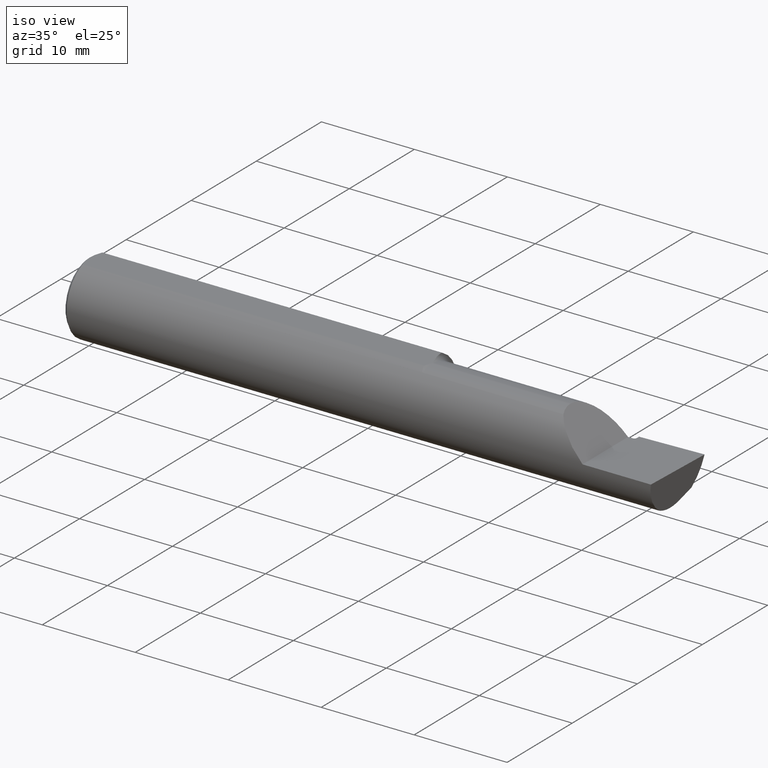
[diagram: clean part render]
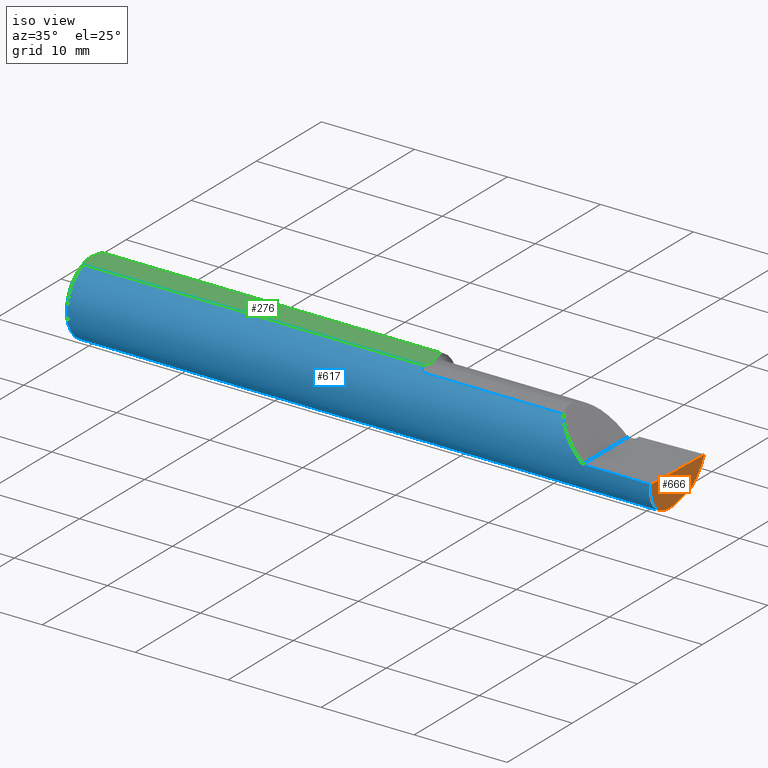
[diagram: same view with three faces highlighted in distinct colors, each labeled with its STEP entity id]
A machine part, iso view with three faces highlighted in distinct colors.
Their STEP definitions:

[orange] entity #666 — the highlighted planar face has unit normal (-0.992, 0.0344, 0.1219).
#6 = CARTESIAN_POINT ( 'NONE',  ( 2.476713598110543035, -0.008170903630063763509, -0.1439000000000001112 ) ) ;
#19 = VECTOR ( 'NONE', #643, 39.37007874015748143 ) ;
#35 = CARTESIAN_POINT ( 'NONE',  ( 2.499553225608604823, 0.1407279727905360600, 3.826894855694925850E-18 ) ) ;
#40 = EDGE_CURVE ( 'NONE', #411, #616, #117, .T. ) ;
#54 = ORIENTED_EDGE ( 'NONE', *, *, #104, .F. ) ;
#60 = CARTESIAN_POINT ( 'NONE',  ( 2.476130359589496788, -0.02499999999999999098, -0.1439000000000001112 ) ) ;
#70 = CARTESIAN_POINT ( 'NONE',  ( 2.489266190342419360, -0.1561000000000000165, 3.826894855694925850E-18 ) ) ;
#104 = EDGE_CURVE ( 'NONE', #652, #581, #305, .T. ) ;
#117 =( BOUNDED_CURVE ( )  B_SPLINE_CURVE ( 3, ( #728, #681, #575, #458 ),
 .UNSPECIFIED., .F., .F. ) 
 B_SPLINE_CURVE_WITH_KNOTS ( ( 4, 4 ),
 ( 4.206370596475371038, 4.793754225472294905 ),
 .UNSPECIFIED. ) 
 CURVE ( )  GEOMETRIC_REPRESENTATION_ITEM ( )  RATIONAL_B_SPLINE_CURVE ( ( 1.000000000000000000, 0.9714544434386382932, 0.9714544434386382932, 1.000000000000000000 ) ) 
 REPRESENTATION_ITEM ( '' )  );
#124 = ORIENTED_EDGE ( 'NONE', *, *, #690, .T. ) ;
#133 = CARTESIAN_POINT ( 'NONE',  ( 2.476130359589496788, -0.02499999999999999098, -0.1439000000000001112 ) ) ;
#154 = PLANE ( 'NONE',  #240 ) ;
#171 = VERTEX_POINT ( 'NONE', #291 ) ;
#193 = DIRECTION ( 'NONE',  ( 0.1219414168599299575, 0.000000000000000000, 0.9925372994775525370 ) ) ;
#214 = DIRECTION ( 'NONE',  ( 0.03463576215158579996, 0.9994000019912840926, 0.000000000000000000 ) ) ;
#217 = CARTESIAN_POINT ( 'NONE',  ( 2.477647009804057276, 0.008402520951239019972, -0.1409776580835795656 ) ) ;
#221 = ORIENTED_EDGE ( 'NONE', *, *, #364, .T. ) ;
#240 = AXIS2_PLACEMENT_3D ( 'NONE', #710, #377, #193 ) ;
#245 = EDGE_CURVE ( 'NONE', #581, #616, #662, .T. ) ;
#277 = CARTESIAN_POINT ( 'NONE',  ( 2.475247014433751946, -0.06661082633900398953, -0.1393521354400291679 ) ) ;
#291 = CARTESIAN_POINT ( 'NONE',  ( 2.478902233428061930, 0.02421669862456291358, -0.1352217681310924902 ) ) ;
#305 =( BOUNDED_CURVE ( )  B_SPLINE_CURVE ( 3, ( #577, #693, #536, #70 ),
 .UNSPECIFIED., .F., .T. ) 
 B_SPLINE_CURVE_WITH_KNOTS ( ( 4, 4 ),
 ( 0.3062340898531116795, 1.295854645076560674 ),
 .UNSPECIFIED. ) 
 CURVE ( )  GEOMETRIC_REPRESENTATION_ITEM ( )  RATIONAL_B_SPLINE_CURVE ( ( 1.000000000000000000, 0.9200392120919966832, 0.9200392120919966832, 1.000000000000000000 ) ) 
 REPRESENTATION_ITEM ( '' )  );
#337 = CARTESIAN_POINT ( 'NONE',  ( 2.476130359589496788, -0.02499999999999999098, -0.1439000000000001112 ) ) ;
#364 = EDGE_CURVE ( 'NONE', #502, #171, #396, .T. ) ;
#367 = CARTESIAN_POINT ( 'NONE',  ( 2.500000000000000000, 0.1536194554637218546, 2.048885995248197414E-16 ) ) ;
#377 = DIRECTION ( 'NONE',  ( -0.9919506264397697226, 0.03437759245049914342, 0.1218693392246628371 ) ) ;
#379 = EDGE_CURVE ( 'NONE', #652, #502, #473, .T. ) ;
#383 = ORIENTED_EDGE ( 'NONE', *, *, #245, .F. ) ;
#396 =( BOUNDED_CURVE ( )  B_SPLINE_CURVE ( 3, ( #337, #6, #217, #665 ),
 .UNSPECIFIED., .F., .T. ) 
 B_SPLINE_CURVE_WITH_KNOTS ( ( 4, 4 ),
 ( 0.2749416817183363282, 0.6240075321171963951 ),
 .UNSPECIFIED. ) 
 CURVE ( )  GEOMETRIC_REPRESENTATION_ITEM ( )  RATIONAL_B_SPLINE_CURVE ( ( 1.000000000000000000, 0.9898718353414723836, 0.9898718353414723836, 1.000000000000000000 ) ) 
 REPRESENTATION_ITEM ( '' )  );
#406 = CARTESIAN_POINT ( 'NONE',  ( 2.489266190342419360, -0.1561000000000000165, 3.826894855694925850E-18 ) ) ;
#411 = VERTEX_POINT ( 'NONE', #565 ) ;
#458 = CARTESIAN_POINT ( 'NONE',  ( 2.500000000000000000, 0.1536194554637218546, 2.048885995248197414E-16 ) ) ;
#473 =( BOUNDED_CURVE ( )  B_SPLINE_CURVE ( 3, ( #676, #277, #724, #60 ),
 .UNSPECIFIED., .F., .T. ) 
 B_SPLINE_CURVE_WITH_KNOTS ( ( 4, 4 ),
 ( 6.122674497807369498, 6.558126988897922338 ),
 .UNSPECIFIED. ) 
 CURVE ( )  GEOMETRIC_REPRESENTATION_ITEM ( )  RATIONAL_B_SPLINE_CURVE ( ( 1.000000000000000000, 0.9842607512044747597, 0.9842607512044747597, 1.000000000000000000 ) ) 
 REPRESENTATION_ITEM ( '' )  );
#475 = ORIENTED_EDGE ( 'NONE', *, *, #40, .T. ) ;
#476 = CARTESIAN_POINT ( 'NONE',  ( 2.475676552398977215, -0.08569999999999922125, -0.1304711462354804230 ) ) ;
#479 = FACE_OUTER_BOUND ( 'NONE', #602, .T. ) ;
#502 = VERTEX_POINT ( 'NONE', #133 ) ;
#536 = CARTESIAN_POINT ( 'NONE',  ( 2.482667168175673122, -0.1560999999999999888, -0.05371247775559876564 ) ) ;
#565 = CARTESIAN_POINT ( 'NONE',  ( 2.484581445595343219, 0.09576735185317623855, -0.1091794601135747944 ) ) ;
#575 = CARTESIAN_POINT ( 'NONE',  ( 2.494605827839288192, 0.1454635380981003923, -0.04160498188424494731 ) ) ;
#577 = CARTESIAN_POINT ( 'NONE',  ( 2.475676552398977215, -0.08569999999999922125, -0.1304711462354804230 ) ) ;
#581 = VERTEX_POINT ( 'NONE', #406 ) ;
#602 = EDGE_LOOP ( 'NONE', ( #655, #221, #124, #475, #383, #54 ) ) ;
#606 = LINE ( 'NONE', #702, #19 ) ;
#616 = VERTEX_POINT ( 'NONE', #367 ) ;
#643 = DIRECTION ( 'NONE',  ( 0.07437990725530781166, 0.9370896517296887218, 0.3410727400684822053 ) ) ;
#652 = VERTEX_POINT ( 'NONE', #476 ) ;
#655 = ORIENTED_EDGE ( 'NONE', *, *, #379, .T. ) ;
#662 = LINE ( 'NONE', #35, #673 ) ;
#665 = CARTESIAN_POINT ( 'NONE',  ( 2.478902233428061930, 0.02421669862456291358, -0.1352217681310924902 ) ) ;
#666 = ADVANCED_FACE ( 'NONE', ( #479 ), #154, .F. ) ;
#673 = VECTOR ( 'NONE', #214, 39.37007874015748143 ) ;
#676 = CARTESIAN_POINT ( 'NONE',  ( 2.475676552398977215, -0.08569999999999922125, -0.1304711462354804230 ) ) ;
#681 = CARTESIAN_POINT ( 'NONE',  ( 2.489315288308734608, 0.1256128547571745691, -0.07906752438118763715 ) ) ;
#690 = EDGE_CURVE ( 'NONE', #171, #411, #606, .T. ) ;
#693 = CARTESIAN_POINT ( 'NONE',  ( 2.477743596163800799, -0.1305938407426047165, -0.1009826174484543676 ) ) ;
#702 = CARTESIAN_POINT ( 'NONE',  ( 2.479018954091639859, 0.02568722648642991421, -0.1346865397607137915 ) ) ;
#710 = CARTESIAN_POINT ( 'NONE',  ( 2.444043095161126278, 0.1555735136390714868, -0.4560102071422535985 ) ) ;
#724 = CARTESIAN_POINT ( 'NONE',  ( 2.475400702430881950, -0.04605394310600616214, -0.1439000000000001112 ) ) ;
#728 = CARTESIAN_POINT ( 'NONE',  ( 2.484581445595343219, 0.09576735185317623855, -0.1091794601135747944 ) ) ;

[blue] entity #617 — the highlighted cylindrical surface (partial cylindrical patch) has radius 3.9649 mm, axis along (-1, -0, -0).
#11 = LINE ( 'NONE', #235, #178 ) ;
#15 = EDGE_CURVE ( 'NONE', #652, #605, #627, .T. ) ;
#17 = CARTESIAN_POINT ( 'NONE',  ( 1.473558490372085750, -0.08570000000287464337, 0.1304711462335919059 ) ) ;
#22 = VECTOR ( 'NONE', #540, 39.37007874015748143 ) ;
#24 = CARTESIAN_POINT ( 'NONE',  ( 1.470308733175471394, -0.08325729668116114979, 0.1320471792325036697 ) ) ;
#28 = VERTEX_POINT ( 'NONE', #180 ) ;
#30 = B_SPLINE_CURVE_WITH_KNOTS ( 'NONE', 3,
 ( #318, #89, #37, #429, #85, #304, #542, #421, #256, #260 ),
 .UNSPECIFIED., .F., .F.,
 ( 4, 2, 2, 2, 4 ),
 ( 0.001819519887002705571, 0.002458246943215913662, 0.003096973999429121754, 0.003735701055642329411, 0.004374428111855537503 ),
 .UNSPECIFIED. ) ;
#34 = DIRECTION ( 'NONE',  ( 1.000000000000000000, 0.000000000000000000, 0.000000000000000000 ) ) ;
#37 = CARTESIAN_POINT ( 'NONE',  ( 1.453136333117606371, -0.008834603825782310488, -0.1560646118524871007 ) ) ;
#39 = ORIENTED_EDGE ( 'NONE', *, *, #222, .T. ) ;
#41 = CARTESIAN_POINT ( 'NONE',  ( 1.450050504025077291, 0.06001999666777734638, 0.1440999999999999504 ) ) ;
#59 = CARTESIAN_POINT ( 'NONE',  ( 0.01499999999999972536, -0.06001999666777736026, 0.1440999999999999504 ) ) ;
#65 = CARTESIAN_POINT ( 'NONE',  ( 1.474999999999999867, -0.08569999999999942941, 0.1304711462354803120 ) ) ;
#70 = CARTESIAN_POINT ( 'NONE',  ( 2.489266190342419360, -0.1561000000000000165, 3.826894855694925850E-18 ) ) ;
#80 = VECTOR ( 'NONE', #168, 39.37007874015748143 ) ;
#85 = CARTESIAN_POINT ( 'NONE',  ( 1.451388441185261113, 0.01585133794323623918, -0.1555099485709025287 ) ) ;
#87 = VERTEX_POINT ( 'NONE', #474 ) ;
#89 = CARTESIAN_POINT ( 'NONE',  ( 1.453902027940762842, -0.01695323297373864391, -0.1553906460178914595 ) ) ;
#101 = CYLINDRICAL_SURFACE ( 'NONE', #592, 0.1560999999999999888 ) ;
#104 = EDGE_CURVE ( 'NONE', #652, #581, #305, .T. ) ;
#115 = CIRCLE ( 'NONE', #670, 0.1560999999999999888 ) ;
#128 = CARTESIAN_POINT ( 'NONE',  ( 1.454862523376303063, -0.02499999999999999445, -0.1540850739039962836 ) ) ;
#131 = B_SPLINE_CURVE_WITH_KNOTS ( 'NONE', 3,
 ( #504, #727, #220, #445, #224, #626, #24, #241, #17, #65 ),
 .UNSPECIFIED., .F., .F.,
 ( 4, 2, 2, 2, 4 ),
 ( 5.292347910093808338E-07, 0.0004247077115782286029, 0.0006367969499718418788, 0.0007428415691686483541, 0.0008488861883654550463 ),
 .UNSPECIFIED. ) ;
#140 = VECTOR ( 'NONE', #633, 39.37007874015748143 ) ;
#143 = LINE ( 'NONE', #551, #22 ) ;
#145 = CARTESIAN_POINT ( 'NONE',  ( 1.450000000000000178, 0.000000000000000000, 0.000000000000000000 ) ) ;
#149 = DIRECTION ( 'NONE',  ( 1.000000000000000000, 0.000000000000000000, 0.000000000000000000 ) ) ;
#151 = CARTESIAN_POINT ( 'NONE',  ( 2.146287522244399781, -0.1560999999999999888, 0.05371247775560062526 ) ) ;
#158 = CARTESIAN_POINT ( 'NONE',  ( 0.01499999999999970281, 0.06001999666777736719, 0.1440999999999999504 ) ) ;
#164 = VECTOR ( 'NONE', #149, 39.37007874015748143 ) ;
#165 = B_SPLINE_CURVE_WITH_KNOTS ( 'NONE', 3,
 ( #546, #713, #706, #41 ),
 .UNSPECIFIED., .F., .F.,
 ( 4, 4 ),
 ( 0.002773882331925834558, 0.003069179409190569887 ),
 .UNSPECIFIED. ) ;
#168 = DIRECTION ( 'NONE',  ( -1.000000000000000000, -0.000000000000000000, -0.000000000000000000 ) ) ;
#170 = CARTESIAN_POINT ( 'NONE',  ( 2.069528853764517784, -0.08569999999999491913, 0.1304711462354829210 ) ) ;
#178 = VECTOR ( 'NONE', #464, 39.37007874015748143 ) ;
#180 = CARTESIAN_POINT ( 'NONE',  ( 0.01499999999999970281, 0.000000000000000000, -0.1560999999999999888 ) ) ;
#194 = EDGE_CURVE ( 'NONE', #684, #608, #477, .T. ) ;
#205 = EDGE_CURVE ( 'NONE', #605, #572, #344, .T. ) ;
#206 = DIRECTION ( 'NONE',  ( 0.000000000000000000, 0.000000000000000000, 1.000000000000000000 ) ) ;
#207 = CARTESIAN_POINT ( 'NONE',  ( 1.450000000000000178, 0.07070000000000016549, 0.1391715488165593539 ) ) ;
#220 = CARTESIAN_POINT ( 'NONE',  ( 1.463486186723763183, -0.06993940022577684046, 0.1396536156489262270 ) ) ;
#222 = EDGE_CURVE ( 'NONE', #423, #395, #316, .T. ) ;
#224 = CARTESIAN_POINT ( 'NONE',  ( 1.467376702052392012, -0.07908290169519981150, 0.1346075232099596952 ) ) ;
#226 = EDGE_CURVE ( 'NONE', #537, #725, #143, .T. ) ;
#233 = VERTEX_POINT ( 'NONE', #207 ) ;
#235 = CARTESIAN_POINT ( 'NONE',  ( 2.056000000000000050, -0.1560999999999999888, 3.826894855694925850E-18 ) ) ;
#241 = CARTESIAN_POINT ( 'NONE',  ( 1.472282960142827557, -0.08496306084893956445, 0.1309561502377618036 ) ) ;
#244 = AXIS2_PLACEMENT_3D ( 'NONE', #145, #34, #554 ) ;
#256 = CARTESIAN_POINT ( 'NONE',  ( 1.450000000000000400, 0.06336441380915118493, -0.1428980715728493389 ) ) ;
#257 = CARTESIAN_POINT ( 'NONE',  ( 1.474999999999999867, -0.08569999999999930451, -0.1304711462354803397 ) ) ;
#260 = CARTESIAN_POINT ( 'NONE',  ( 1.450000000000000178, 0.07070000000000016549, -0.1391715488165593539 ) ) ;
#262 = VERTEX_POINT ( 'NONE', #319 ) ;
#265 = ORIENTED_EDGE ( 'NONE', *, *, #226, .T. ) ;
#267 = CIRCLE ( 'NONE', #244, 0.1560999999999999888 ) ;
#268 = CARTESIAN_POINT ( 'NONE',  ( 1.470128093538963343, -0.08306175160949928749, -0.1321708551218366279 ) ) ;
#271 = EDGE_CURVE ( 'NONE', #725, #28, #387, .T. ) ;
#301 = CARTESIAN_POINT ( 'NONE',  ( 1.474999999999999867, -0.08569999999999930451, -0.1304711462354803397 ) ) ;
#304 = CARTESIAN_POINT ( 'NONE',  ( 1.450649978979527077, 0.03207608857981674583, -0.1529893249888212570 ) ) ;
#305 =( BOUNDED_CURVE ( )  B_SPLINE_CURVE ( 3, ( #577, #693, #536, #70 ),
 .UNSPECIFIED., .F., .T. ) 
 B_SPLINE_CURVE_WITH_KNOTS ( ( 4, 4 ),
 ( 0.3062340898531116795, 1.295854645076560674 ),
 .UNSPECIFIED. ) 
 CURVE ( )  GEOMETRIC_REPRESENTATION_ITEM ( )  RATIONAL_B_SPLINE_CURVE ( ( 1.000000000000000000, 0.9200392120919966832, 0.9200392120919966832, 1.000000000000000000 ) ) 
 REPRESENTATION_ITEM ( '' )  );
#306 = CARTESIAN_POINT ( 'NONE',  ( 1.472162220462617244, -0.08489276752862366660, -0.1310023188550751005 ) ) ;
#310 = DIRECTION ( 'NONE',  ( -1.000000000000000000, -0.000000000000000000, -0.000000000000000000 ) ) ;
#311 = CARTESIAN_POINT ( 'NONE',  ( 1.467151728812736033, -0.07866717671367091935, -0.1348531152278719392 ) ) ;
#314 = CARTESIAN_POINT ( 'NONE',  ( 1.450050504025077291, 0.06001999666777734638, 0.1440999999999999504 ) ) ;
#316 =( BOUNDED_CURVE ( )  B_SPLINE_CURVE ( 3, ( #711, #151, #544, #498 ),
 .UNSPECIFIED., .F., .T. ) 
 B_SPLINE_CURVE_WITH_KNOTS ( ( 4, 4 ),
 ( 4.712388980384689674, 5.702009535608170587 ),
 .UNSPECIFIED. ) 
 CURVE ( )  GEOMETRIC_REPRESENTATION_ITEM ( )  RATIONAL_B_SPLINE_CURVE ( ( 1.000000000000000000, 0.9200392120919916872, 0.9200392120919916872, 1.000000000000000000 ) ) 
 REPRESENTATION_ITEM ( '' )  );
#318 = CARTESIAN_POINT ( 'NONE',  ( 1.454862523376303063, -0.02499999999999999445, -0.1540850739039962836 ) ) ;
#319 = CARTESIAN_POINT ( 'NONE',  ( 1.450000000000000178, 0.07070000000000016549, -0.1391715488165593539 ) ) ;
#330 = ORIENTED_EDGE ( 'NONE', *, *, #104, .T. ) ;
#339 = ORIENTED_EDGE ( 'NONE', *, *, #678, .F. ) ;
#344 = B_SPLINE_CURVE_WITH_KNOTS ( 'NONE', 3,
 ( #257, #427, #306, #268, #372, #311, #422, #598, #485, #607, #718, #654 ),
 .UNSPECIFIED., .F., .F.,
 ( 4, 2, 2, 2, 2, 4 ),
 ( 1.966861314630388892E-07, 0.0001139043861859138809, 0.0002276120862403647051, 0.0004550274863492680339, 0.0009098582865670818472, 0.001819519887002705571 ),
 .UNSPECIFIED. ) ;
#372 = CARTESIAN_POINT ( 'NONE',  ( 1.469310887745669092, -0.08198244806375819260, -0.1328448627315470809 ) ) ;
#378 = DIRECTION ( 'NONE',  ( 1.000000000000000000, -0.000000000000000000, -0.000000000000000000 ) ) ;
#386 = ORIENTED_EDGE ( 'NONE', *, *, #205, .F. ) ;
#387 = CIRCLE ( 'NONE', #558, 0.1560999999999999888 ) ;
#395 = VERTEX_POINT ( 'NONE', #170 ) ;
#406 = CARTESIAN_POINT ( 'NONE',  ( 2.489266190342419360, -0.1561000000000000165, 3.826894855694925850E-18 ) ) ;
#407 = CARTESIAN_POINT ( 'NONE',  ( 2.500000000000000000, 0.06001999666777736719, 0.1440999999999999504 ) ) ;
#421 = CARTESIAN_POINT ( 'NONE',  ( 1.450071990262527422, 0.05564801034740572694, -0.1460745134073546669 ) ) ;
#422 = CARTESIAN_POINT ( 'NONE',  ( 1.466062054560795858, -0.07627963852229831254, -0.1362221433799975789 ) ) ;
#423 = VERTEX_POINT ( 'NONE', #680 ) ;
#427 = CARTESIAN_POINT ( 'NONE',  ( 1.473482932671287271, -0.08569999999999937390, -0.1304711462354803397 ) ) ;
#429 = CARTESIAN_POINT ( 'NONE',  ( 1.451879363605551587, 0.007536363012658814885, -0.1561326888578026539 ) ) ;
#435 = LINE ( 'NONE', #661, #164 ) ;
#443 = ORIENTED_EDGE ( 'NONE', *, *, #621, .F. ) ;
#445 = CARTESIAN_POINT ( 'NONE',  ( 1.466324726609743445, -0.07684337455390506666, 0.1359013108991525554 ) ) ;
#450 = CARTESIAN_POINT ( 'NONE',  ( 0.01499999999999970281, 0.000000000000000000, 0.000000000000000000 ) ) ;
#455 = EDGE_CURVE ( 'NONE', #537, #87, #131, .T. ) ;
#464 = DIRECTION ( 'NONE',  ( 1.000000000000000000, -0.000000000000000000, -0.000000000000000000 ) ) ;
#474 = CARTESIAN_POINT ( 'NONE',  ( 1.474999999999999867, -0.08569999999999942941, 0.1304711462354803120 ) ) ;
#476 = CARTESIAN_POINT ( 'NONE',  ( 2.475676552398977215, -0.08569999999999922125, -0.1304711462354804230 ) ) ;
#477 = LINE ( 'NONE', #407, #140 ) ;
#485 = CARTESIAN_POINT ( 'NONE',  ( 1.461707069840786799, -0.06372296352516912399, -0.1426158673175149105 ) ) ;
#486 = ORIENTED_EDGE ( 'NONE', *, *, #589, .F. ) ;
#489 = ORIENTED_EDGE ( 'NONE', *, *, #15, .F. ) ;
#498 = CARTESIAN_POINT ( 'NONE',  ( 2.069528853764517784, -0.08569999999999491913, 0.1304711462354829210 ) ) ;
#504 = CARTESIAN_POINT ( 'NONE',  ( 1.460843495424060334, -0.06001999666777307896, 0.1440999999999999504 ) ) ;
#519 = CARTESIAN_POINT ( 'NONE',  ( 1.460843495424060334, -0.06001999666777307896, 0.1440999999999999504 ) ) ;
#536 = CARTESIAN_POINT ( 'NONE',  ( 2.482667168175673122, -0.1560999999999999888, -0.05371247775559876564 ) ) ;
#537 = VERTEX_POINT ( 'NONE', #519 ) ;
#539 = FACE_OUTER_BOUND ( 'NONE', #552, .T. ) ;
#540 = DIRECTION ( 'NONE',  ( -1.000000000000000000, -0.000000000000000000, -0.000000000000000000 ) ) ;
#542 = CARTESIAN_POINT ( 'NONE',  ( 1.450397517577731943, 0.04003554869482257861, -0.1511013546051950540 ) ) ;
#544 = CARTESIAN_POINT ( 'NONE',  ( 2.099017382551542799, -0.1305938407426030790, 0.1009826174484575040 ) ) ;
#546 = CARTESIAN_POINT ( 'NONE',  ( 1.450000000000000178, 0.07070000000000016549, 0.1391715488165593539 ) ) ;
#551 = CARTESIAN_POINT ( 'NONE',  ( 2.500000000000000000, -0.06001999666777736719, 0.1440999999999999504 ) ) ;
#552 = EDGE_LOOP ( 'NONE', ( #489, #330, #486, #39, #339, #715, #265, #624, #599, #611, #443, #588, #691, #386 ) ) ;
#554 = DIRECTION ( 'NONE',  ( 0.000000000000000000, 0.000000000000000000, -1.000000000000000000 ) ) ;
#558 = AXIS2_PLACEMENT_3D ( 'NONE', #601, #378, #651 ) ;
#559 = DIRECTION ( 'NONE',  ( 1.000000000000000000, -0.000000000000000000, -0.000000000000000000 ) ) ;
#563 = CARTESIAN_POINT ( 'NONE',  ( 1.847499999999999920, -0.08569999999999922125, -0.1304711462354804230 ) ) ;
#572 = VERTEX_POINT ( 'NONE', #128 ) ;
#577 = CARTESIAN_POINT ( 'NONE',  ( 2.475676552398977215, -0.08569999999999922125, -0.1304711462354804230 ) ) ;
#581 = VERTEX_POINT ( 'NONE', #406 ) ;
#588 = ORIENTED_EDGE ( 'NONE', *, *, #613, .F. ) ;
#589 = EDGE_CURVE ( 'NONE', #423, #581, #11, .T. ) ;
#592 = AXIS2_PLACEMENT_3D ( 'NONE', #596, #310, #206 ) ;
#596 = CARTESIAN_POINT ( 'NONE',  ( 2.500000000000000000, 0.000000000000000000, 0.000000000000000000 ) ) ;
#598 = CARTESIAN_POINT ( 'NONE',  ( 1.463126895908767100, -0.06887538526310800491, -0.1401954838979877493 ) ) ;
#599 = ORIENTED_EDGE ( 'NONE', *, *, #720, .T. ) ;
#601 = CARTESIAN_POINT ( 'NONE',  ( 0.01499999999999970281, 0.000000000000000000, 0.000000000000000000 ) ) ;
#605 = VERTEX_POINT ( 'NONE', #301 ) ;
#607 = CARTESIAN_POINT ( 'NONE',  ( 1.457963511987595773, -0.04781653154421297569, -0.1490354188631308474 ) ) ;
#608 = VERTEX_POINT ( 'NONE', #314 ) ;
#611 = ORIENTED_EDGE ( 'NONE', *, *, #194, .T. ) ;
#613 = EDGE_CURVE ( 'NONE', #262, #233, #267, .T. ) ;
#617 = ADVANCED_FACE ( 'NONE', ( #539 ), #101, .T. ) ;
#621 = EDGE_CURVE ( 'NONE', #233, #608, #165, .T. ) ;
#624 = ORIENTED_EDGE ( 'NONE', *, *, #271, .T. ) ;
#626 = CARTESIAN_POINT ( 'NONE',  ( 1.469508261956889550, -0.08224208440130487130, 0.1326837206089796495 ) ) ;
#627 = LINE ( 'NONE', #563, #80 ) ;
#633 = DIRECTION ( 'NONE',  ( 1.000000000000000000, 0.000000000000000000, 0.000000000000000000 ) ) ;
#636 = EDGE_CURVE ( 'NONE', #572, #262, #30, .T. ) ;
#651 = DIRECTION ( 'NONE',  ( 0.000000000000000000, 0.000000000000000000, -1.000000000000000000 ) ) ;
#652 = VERTEX_POINT ( 'NONE', #476 ) ;
#654 = CARTESIAN_POINT ( 'NONE',  ( 1.454862523376303063, -0.02499999999999999445, -0.1540850739039962836 ) ) ;
#661 = CARTESIAN_POINT ( 'NONE',  ( 1.847499999999999920, -0.08569999999999922125, 0.1304711462354804230 ) ) ;
#670 = AXIS2_PLACEMENT_3D ( 'NONE', #450, #559, #679 ) ;
#678 = EDGE_CURVE ( 'NONE', #87, #395, #435, .T. ) ;
#679 = DIRECTION ( 'NONE',  ( 0.000000000000000000, 0.000000000000000000, -1.000000000000000000 ) ) ;
#680 = CARTESIAN_POINT ( 'NONE',  ( 2.199999999999999289, -0.1560999999999999888, 3.826894855694925850E-18 ) ) ;
#684 = VERTEX_POINT ( 'NONE', #158 ) ;
#691 = ORIENTED_EDGE ( 'NONE', *, *, #636, .F. ) ;
#693 = CARTESIAN_POINT ( 'NONE',  ( 2.477743596163800799, -0.1305938407426047165, -0.1009826174484543676 ) ) ;
#706 = CARTESIAN_POINT ( 'NONE',  ( 1.450016018626790970, 0.06364538733738611676, 0.1425899657466627724 ) ) ;
#711 = CARTESIAN_POINT ( 'NONE',  ( 2.199999999999999289, -0.1560999999999999888, 3.826894855694925850E-18 ) ) ;
#713 = CARTESIAN_POINT ( 'NONE',  ( 1.450000000000000178, 0.06720526509779117807, 0.1409468955716051408 ) ) ;
#715 = ORIENTED_EDGE ( 'NONE', *, *, #455, .F. ) ;
#718 = CARTESIAN_POINT ( 'NONE',  ( 1.456230440715338137, -0.03646003586389188339, -0.1522257056385417917 ) ) ;
#720 = EDGE_CURVE ( 'NONE', #28, #684, #115, .T. ) ;
#725 = VERTEX_POINT ( 'NONE', #59 ) ;
#727 = CARTESIAN_POINT ( 'NONE',  ( 1.462083001804620253, -0.06507129184707169389, 0.1419960532975073353 ) ) ;

[green] entity #276 — the highlighted planar face has unit normal (-0, 0, -1).
#12 = CARTESIAN_POINT ( 'NONE',  ( 0.004122478534597582081, 0.02050740516666000463, 0.1440999999999999504 ) ) ;
#22 = VECTOR ( 'NONE', #540, 39.37007874015748143 ) ;
#25 = CARTESIAN_POINT ( 'NONE',  ( 1.469201185154610068, -0.03693468910894925211, 0.1440999999999999504 ) ) ;
#26 = CARTESIAN_POINT ( 'NONE',  ( 0.002999999999999654852, 1.764715027525136477E-17, 0.1440999999999999504 ) ) ;
#32 = ORIENTED_EDGE ( 'NONE', *, *, #64, .F. ) ;
#46 = CARTESIAN_POINT ( 'NONE',  ( 0.000000000000000000, 0.06250000000000000000, 0.1440999999999999504 ) ) ;
#53 = CARTESIAN_POINT ( 'NONE',  ( 1.471844053232376659, -0.02500000000003148315, 0.1440999999999999504 ) ) ;
#59 = CARTESIAN_POINT ( 'NONE',  ( 0.01499999999999972536, -0.06001999666777736026, 0.1440999999999999504 ) ) ;
#64 = EDGE_CURVE ( 'NONE', #452, #537, #622, .T. ) ;
#67 = CARTESIAN_POINT ( 'NONE',  ( 0.002999999999999654852, 1.764715027525136477E-17, 0.1440999999999999504 ) ) ;
#68 = CARTESIAN_POINT ( 'NONE',  ( 0.01499999999999972536, -0.06001999666777736026, 0.1440999999999999504 ) ) ;
#72 = CARTESIAN_POINT ( 'NONE',  ( 0.002999999999999647914, -0.01031315224690933403, 0.1440999999999999781 ) ) ;
#74 = CARTESIAN_POINT ( 'NONE',  ( 0.002999999999999654852, 1.764715027525136477E-17, 0.1440999999999999504 ) ) ;
#83 = CARTESIAN_POINT ( 'NONE',  ( 0.01131807689752593361, 0.05044405151276061539, 0.1440999999999999781 ) ) ;
#99 = EDGE_CURVE ( 'NONE', #684, #135, #555, .T. ) ;
#123 = B_SPLINE_CURVE_WITH_KNOTS ( 'NONE', 3,
 ( #26, #72, #692, #638, #456, #68 ),
 .UNSPECIFIED., .F., .F.,
 ( 4, 2, 4 ),
 ( 0.004180243930011207955, 0.004951811791491188969, 0.005723379652971170850 ),
 .UNSPECIFIED. ) ;
#135 = VERTEX_POINT ( 'NONE', #67 ) ;
#136 = CARTESIAN_POINT ( 'NONE',  ( 1.471844053232376659, -0.02500000000003148315, 0.1440999999999999504 ) ) ;
#140 = VECTOR ( 'NONE', #633, 39.37007874015748143 ) ;
#143 = LINE ( 'NONE', #551, #22 ) ;
#158 = CARTESIAN_POINT ( 'NONE',  ( 0.01499999999999970281, 0.06001999666777736719, 0.1440999999999999504 ) ) ;
#192 = EDGE_LOOP ( 'NONE', ( #374, #243, #545, #461, #415, #32 ) ) ;
#194 = EDGE_CURVE ( 'NONE', #684, #608, #477, .T. ) ;
#226 = EDGE_CURVE ( 'NONE', #537, #725, #143, .T. ) ;
#243 = ORIENTED_EDGE ( 'NONE', *, *, #194, .F. ) ;
#259 = B_SPLINE_CURVE_WITH_KNOTS ( 'NONE', 3,
 ( #403, #579, #459, #635, #298, #469, #632, #400, #628, #136 ),
 .UNSPECIFIED., .F., .F.,
 ( 4, 2, 2, 2, 4 ),
 ( 0.01301670781631528509, 0.01412932456335375814, 0.01468563293687299640, 0.01496378712363261726, 0.01524194131039223639 ),
 .UNSPECIFIED. ) ;
#266 = AXIS2_PLACEMENT_3D ( 'NONE', #46, #547, #439 ) ;
#276 = ADVANCED_FACE ( 'NONE', ( #714 ), #556, .F. ) ;
#295 = CARTESIAN_POINT ( 'NONE',  ( 0.01499999999999970281, 0.06001999666777736719, 0.1440999999999999504 ) ) ;
#298 = CARTESIAN_POINT ( 'NONE',  ( 1.463353959584570596, 0.002866311517161839687, 0.1440999999999999504 ) ) ;
#299 = CARTESIAN_POINT ( 'NONE',  ( 0.002999999999999648781, 0.01034624861404697359, 0.1440999999999999781 ) ) ;
#314 = CARTESIAN_POINT ( 'NONE',  ( 1.450050504025077291, 0.06001999666777734638, 0.1440999999999999504 ) ) ;
#345 = CARTESIAN_POINT ( 'NONE',  ( 1.462837095251398489, -0.05422015848554270073, 0.1440999999999999781 ) ) ;
#374 = ORIENTED_EDGE ( 'NONE', *, *, #462, .F. ) ;
#400 = CARTESIAN_POINT ( 'NONE',  ( 1.470724021719190588, -0.01776615298045939803, 0.1440999999999999781 ) ) ;
#403 = CARTESIAN_POINT ( 'NONE',  ( 1.450050504025077291, 0.06001999666777734638, 0.1440999999999999504 ) ) ;
#407 = CARTESIAN_POINT ( 'NONE',  ( 2.500000000000000000, 0.06001999666777736719, 0.1440999999999999504 ) ) ;
#414 = CARTESIAN_POINT ( 'NONE',  ( 1.471036826405246911, -0.03107590170041914929, 0.1440999999999999781 ) ) ;
#415 = ORIENTED_EDGE ( 'NONE', *, *, #226, .F. ) ;
#418 = CARTESIAN_POINT ( 'NONE',  ( 1.468148277183320971, -0.03981762987256244612, 0.1440999999999999504 ) ) ;
#439 = DIRECTION ( 'NONE',  ( -1.000000000000000000, 0.000000000000000000, 0.000000000000000000 ) ) ;
#452 = VERTEX_POINT ( 'NONE', #53 ) ;
#456 = CARTESIAN_POINT ( 'NONE',  ( 0.01133677082750125277, -0.05049267068356103755, 0.1440999999999999781 ) ) ;
#459 = CARTESIAN_POINT ( 'NONE',  ( 1.454082834115635547, 0.03088512097718992475, 0.1440999999999999781 ) ) ;
#461 = ORIENTED_EDGE ( 'NONE', *, *, #513, .T. ) ;
#462 = EDGE_CURVE ( 'NONE', #608, #452, #259, .T. ) ;
#469 = CARTESIAN_POINT ( 'NONE',  ( 1.467139718007820059, -0.007416860360642662381, 0.1440999999999999504 ) ) ;
#477 = LINE ( 'NONE', #407, #140 ) ;
#513 = EDGE_CURVE ( 'NONE', #135, #725, #123, .T. ) ;
#519 = CARTESIAN_POINT ( 'NONE',  ( 1.460843495424060334, -0.06001999666777307896, 0.1440999999999999504 ) ) ;
#533 = CARTESIAN_POINT ( 'NONE',  ( 1.471844053232376659, -0.02500000000003148315, 0.1440999999999999504 ) ) ;
#537 = VERTEX_POINT ( 'NONE', #519 ) ;
#540 = DIRECTION ( 'NONE',  ( -1.000000000000000000, -0.000000000000000000, -0.000000000000000000 ) ) ;
#545 = ORIENTED_EDGE ( 'NONE', *, *, #99, .T. ) ;
#547 = DIRECTION ( 'NONE',  ( -0.000000000000000000, 0.000000000000000000, -1.000000000000000000 ) ) ;
#551 = CARTESIAN_POINT ( 'NONE',  ( 2.500000000000000000, -0.06001999666777736719, 0.1440999999999999504 ) ) ;
#555 = B_SPLINE_CURVE_WITH_KNOTS ( 'NONE', 3,
 ( #295, #83, #587, #12, #299, #74 ),
 .UNSPECIFIED., .F., .F.,
 ( 4, 2, 4 ),
 ( 0.002632156065823466548, 0.003406199997917337685, 0.004180243930011207955 ),
 .UNSPECIFIED. ) ;
#556 = PLANE ( 'NONE',  #266 ) ;
#579 = CARTESIAN_POINT ( 'NONE',  ( 1.450532541532473463, 0.04511886254872560231, 0.1440999999999999504 ) ) ;
#587 = CARTESIAN_POINT ( 'NONE',  ( 0.008267319495954040393, 0.04051643528673654765, 0.1440999999999999781 ) ) ;
#608 = VERTEX_POINT ( 'NONE', #314 ) ;
#622 = B_SPLINE_CURVE_WITH_KNOTS ( 'NONE', 3,
 ( #533, #703, #414, #25, #418, #629, #345, #645 ),
 .UNSPECIFIED., .F., .F.,
 ( 4, 2, 2, 4 ),
 ( 0.0006785821176393244452, 0.0009116715494801274884, 0.001144760981320930640, 0.001610939845002537377 ),
 .UNSPECIFIED. ) ;
#628 = CARTESIAN_POINT ( 'NONE',  ( 1.471844053232385985, -0.02136326841098664525, 0.1440999999999998948 ) ) ;
#629 = CARTESIAN_POINT ( 'NONE',  ( 1.464985600317321612, -0.04846509284843828619, 0.1440999999999999504 ) ) ;
#632 = CARTESIAN_POINT ( 'NONE',  ( 1.468418672230969779, -0.01083899323586181608, 0.1440999999999999504 ) ) ;
#633 = DIRECTION ( 'NONE',  ( 1.000000000000000000, 0.000000000000000000, 0.000000000000000000 ) ) ;
#635 = CARTESIAN_POINT ( 'NONE',  ( 1.460816084744947396, 0.009840729273027787327, 0.1440999999999999781 ) ) ;
#638 = CARTESIAN_POINT ( 'NONE',  ( 0.008281010600930404503, -0.04057055625899311929, 0.1440999999999999226 ) ) ;
#645 = CARTESIAN_POINT ( 'NONE',  ( 1.460843495424060334, -0.06001999666777307896, 0.1440999999999999504 ) ) ;
#684 = VERTEX_POINT ( 'NONE', #158 ) ;
#692 = CARTESIAN_POINT ( 'NONE',  ( 0.004124548268480916768, -0.02052932358343030617, 0.1441000000000000059 ) ) ;
#703 = CARTESIAN_POINT ( 'NONE',  ( 1.471844053232375105, -0.02804753169359753412, 0.1440999999999999781 ) ) ;
#714 = FACE_OUTER_BOUND ( 'NONE', #192, .T. ) ;
#725 = VERTEX_POINT ( 'NONE', #59 ) ;